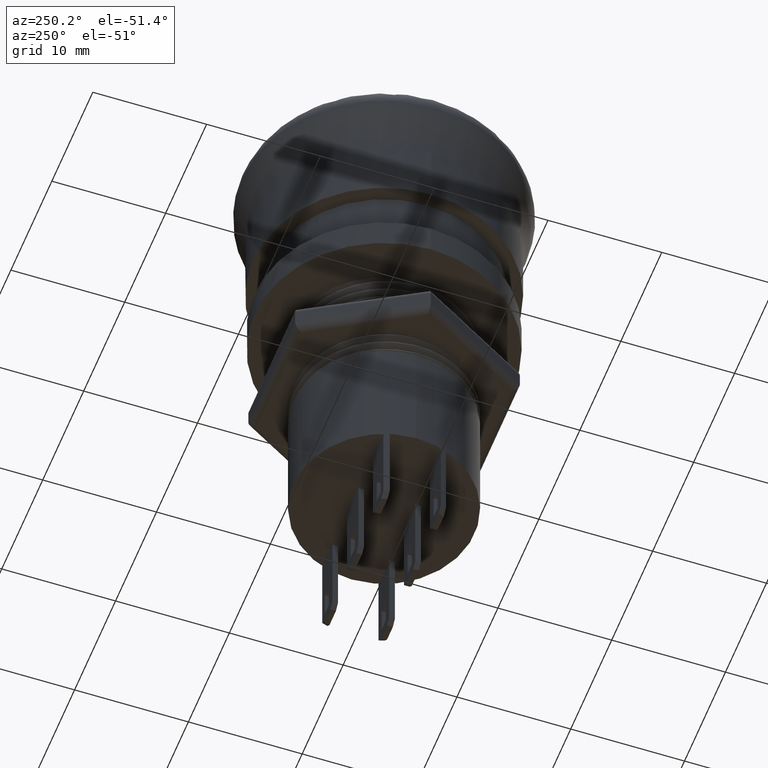
[diagram: clean part render]
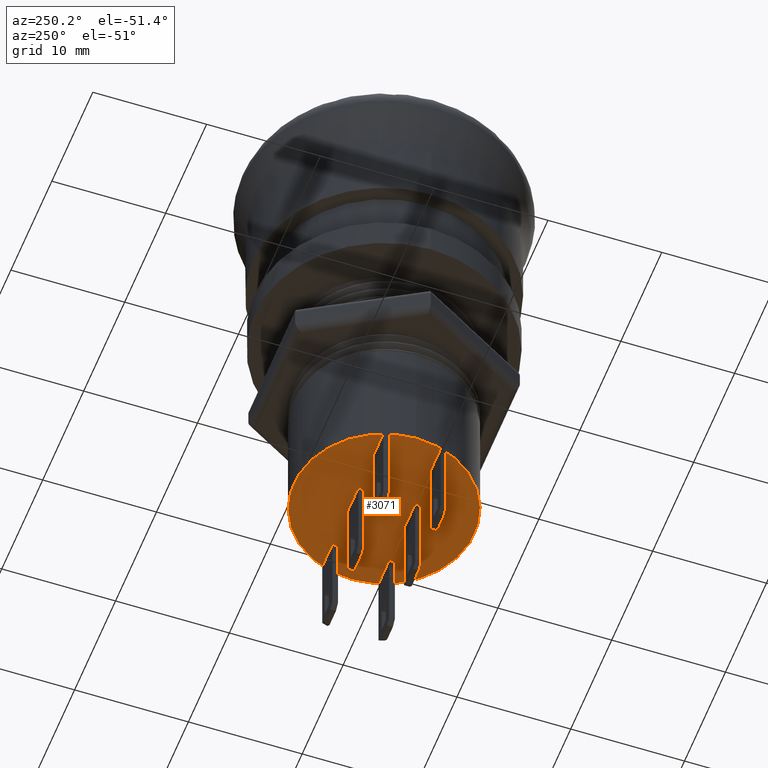
[diagram: same view with one face highlighted and labeled with its STEP entity id]
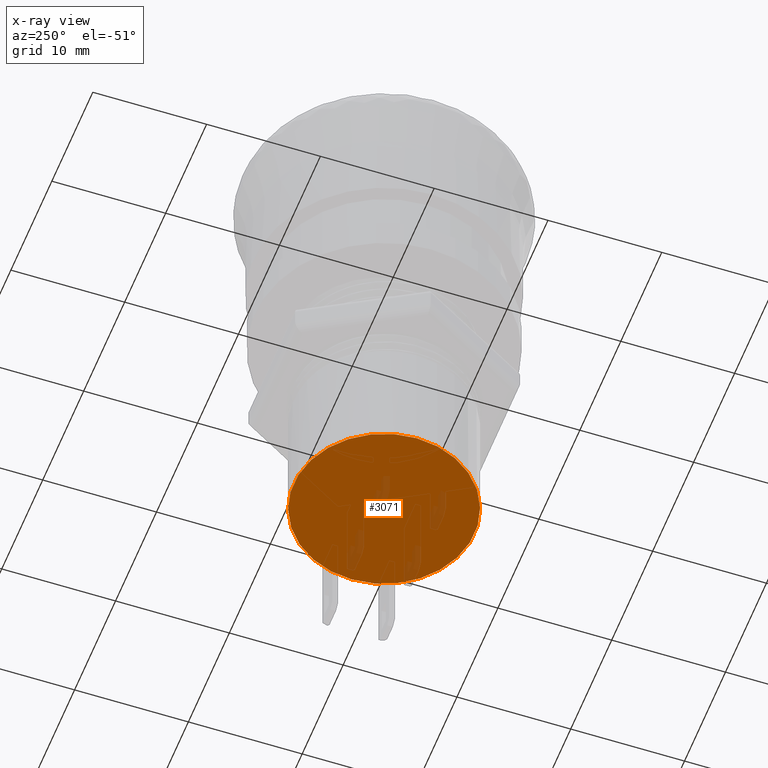
[diagram: x-ray of the same camera — body ghosted, the highlighted face saturated]
A machine part, auxiliary view. The second image highlights one B-rep face of the part: STEP entity #3071.
The next image is the same camera in x-ray: the body ghosted, the highlighted face saturated — about 7% of this face is hidden behind the body in this view.
In plain terms, the highlighted planar face has unit normal (0, 0, -1).
Its self-contained STEP definition (entity closure, byte-faithful):
#162=CIRCLE('',#3275,7.942);
#312=FACE_OUTER_BOUND('',#498,.T.);
#498=EDGE_LOOP('',(#2304));
#1323=VERTEX_POINT('',#4623);
#1640=EDGE_CURVE('',#1323,#1323,#162,.T.);
#2304=ORIENTED_EDGE('',*,*,#1640,.F.);
#2918=PLANE('',#3303);
#3071=ADVANCED_FACE('',(#312),#2918,.T.);
#3275=AXIS2_PLACEMENT_3D('',#4625,#3639,#3640);
#3303=AXIS2_PLACEMENT_3D('',#7407,#3714,#3715);
#3639=DIRECTION('center_axis',(0.,0.,1.));
#3640=DIRECTION('ref_axis',(1.,0.,0.));
#3714=DIRECTION('center_axis',(0.,0.,-1.));
#3715=DIRECTION('ref_axis',(-1.,0.,0.));
#4623=CARTESIAN_POINT('',(-7.942,-9.72614487882828E-16,-41.15));
#4625=CARTESIAN_POINT('Origin',(0.,0.,-41.15));
#7407=CARTESIAN_POINT('Origin',(7.825,0.,-41.15));